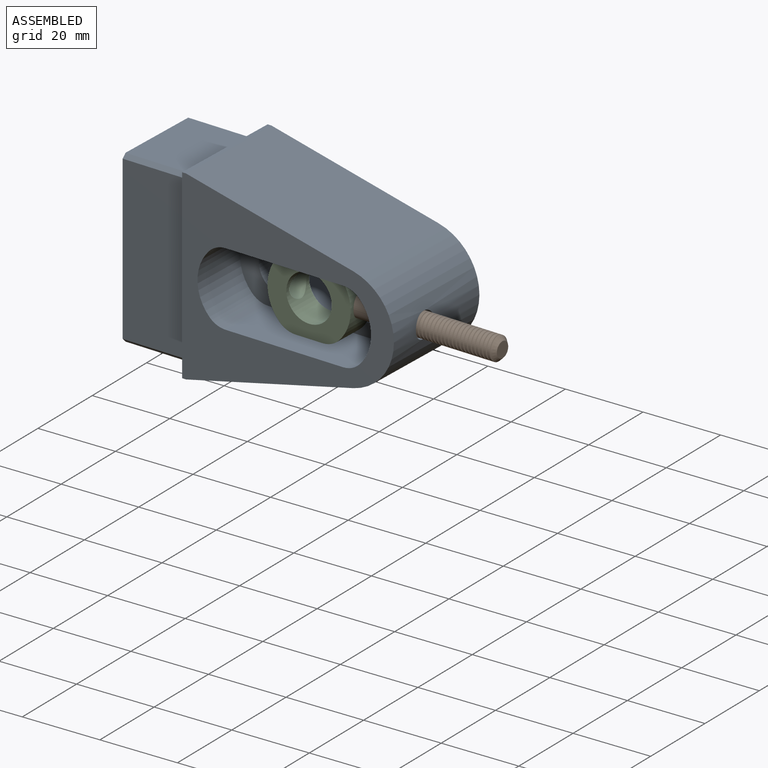
[diagram: assembled view]
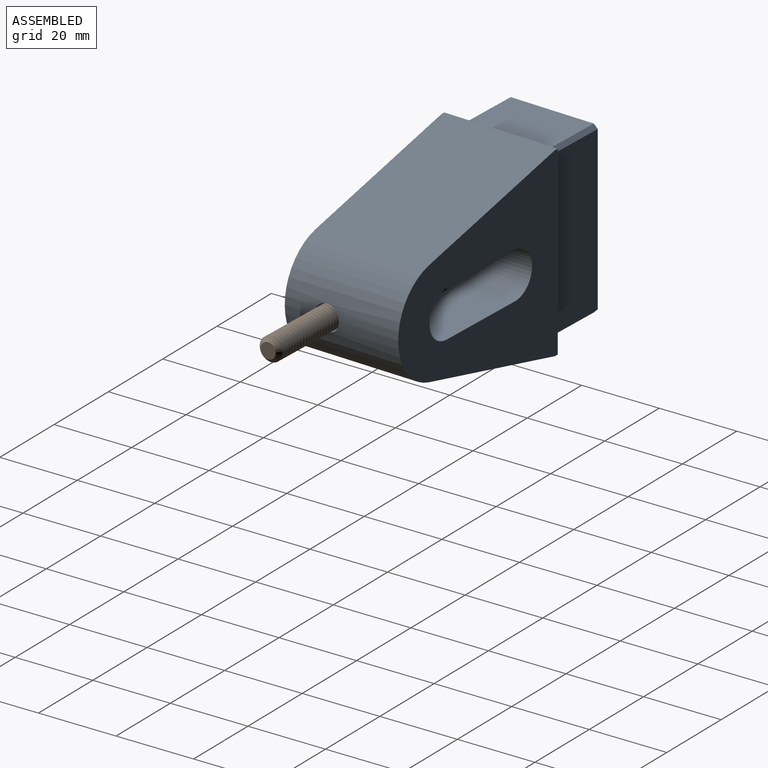
[diagram: assembled view, second angle]
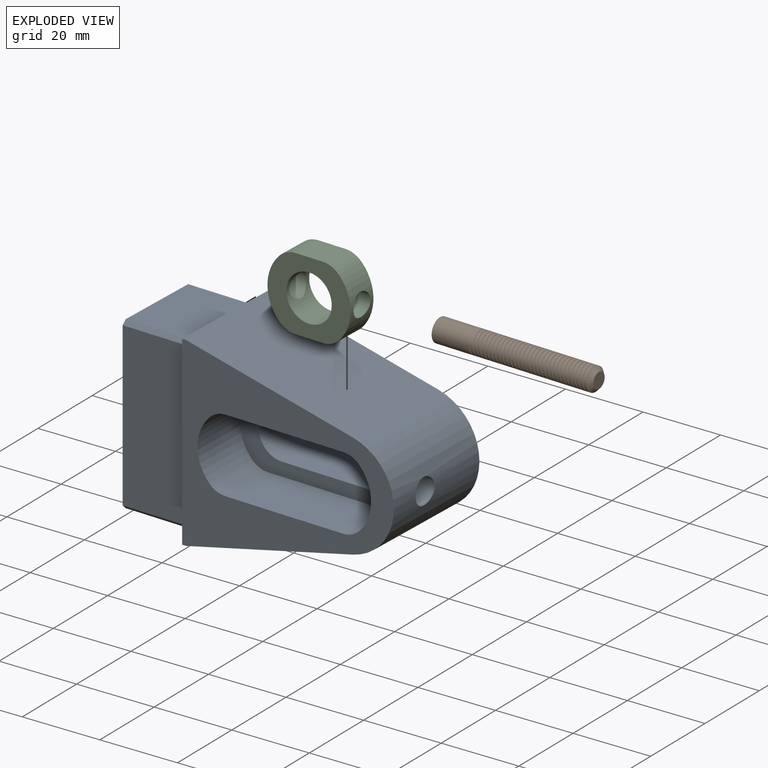
[diagram: exploded view]
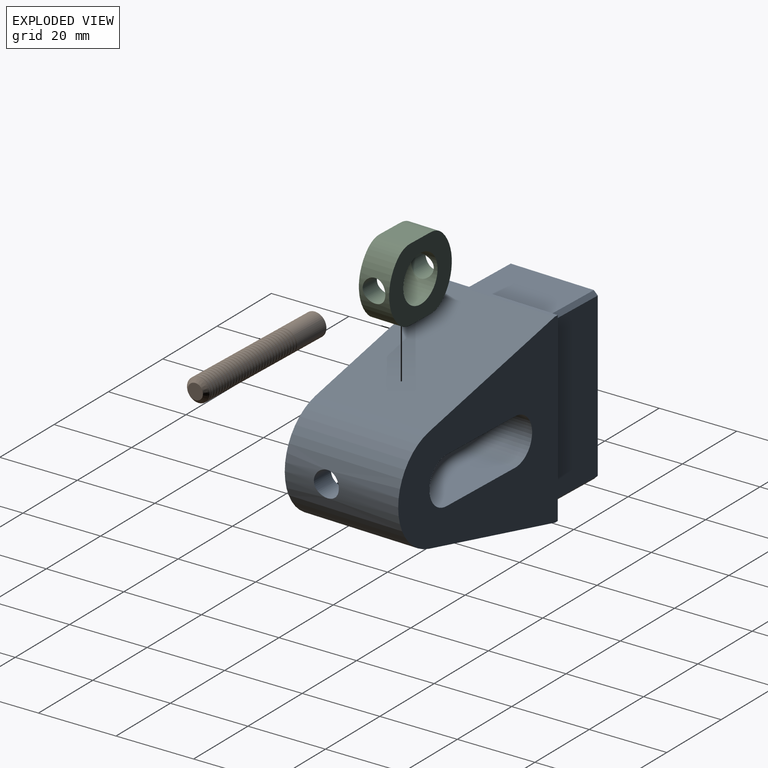
[diagram: exploded view, second angle]
ASSEMBLY  parts=3 mates=3
PART A: 31 faces, bbox 74x30x48 mm
  f0: plane 56x48mm, normal (0,-1,0), area 1120.4mm2, adj f5,f9,f10,f11,f12,f13,f22,f23
  f1: cylinder r=6mm len=15mm, axis (0,-1,0), area 282.7mm2, adj f2,f3,f14,f26
  f2: plane 24x15mm, normal (0,0,1), area 360mm2, adj f1,f4,f14,f26
  f3: plane 24x15mm, normal (0,0,-1), area 360mm2, adj f1,f4,f14,f26
  f4: cylinder r=6mm len=15mm, axis (0,-1,0), area 282.7mm2, adj f2,f3,f14,f26
  f5: cylinder r=14mm len=30mm, axis (0,1,0), area 1091.5mm2, adj f0,f10,f11,f14,f21
  f6: plane 22x18mm, normal (0,0,1), area 396mm2, adj f7,f13,f17,f20
  f7: plane 44x24mm, normal (-1,0,0), area 1054mm2, adj f6,f8,f15,f16,f17,f18,f19,f20
  f8: plane 22x18mm, normal (0,0,-1), area 396mm2, adj f7,f13,f18,f19
  f9: plane 30x1mm, normal (0,0,-1), area 30mm2, adj f0,f10,f13,f14
  f10: plane 44.2x30mm, normal (0.23,0,-0.97), area 1361.9mm2, adj f0,f5,f9,f14
  f11: plane 44.2x30mm, normal (0.23,0,0.97), area 1361.9mm2, adj f0,f5,f12,f14
  f12: plane 30x1mm, normal (0,0,1), area 30mm2, adj f0,f11,f13,f14
  f13: plane 48x30mm, normal (-1,0,0), area 386mm2, adj f0,f6,f8,f9,f12,f14,f15,f16
  f14: plane 56x48mm, normal (0,1,0), area 1529.2mm2, adj f1,f2,f3,f4,f5,f9,f10,f11
  f15: plane 42x18mm, normal (0,1,0), area 756mm2, adj f7,f13,f19,f20
  f16: plane 42x18mm, normal (0,-1,0), area 756mm2, adj f7,f13,f17,f18
  f17: plane 18x1mm, normal (0,-0.71,0.71), area 25.5mm2, adj f6,f7,f13,f16
  f18: plane 18x1mm, normal (0,-0.71,-0.71), area 25.5mm2, adj f7,f8,f13,f16
  f19: plane 18x1mm, normal (0,0.71,-0.71), area 25.5mm2, adj f7,f8,f13,f15
  f20: plane 18x1mm, normal (0,0.71,0.71), area 25.5mm2, adj f6,f7,f13,f15
  f21: cylinder r=3.3mm len=6.6mm, axis (1,0,0), area 126.5mm2, adj f5,f25
  f22: plane 31.05x15mm, normal (0,0,-1), area 465.8mm2, adj f0,f26,f27,f30
  f23: cylinder r=11mm len=15.4mm, axis (0,-1,0), area 255.9mm2, adj f0,f26,f27,f28
  f24: plane 31.05x15mm, normal (0,0,1), area 465.8mm2, adj f0,f26,f28,f29
  f25: cylinder r=11mm len=15.4mm, axis (0,-1,0), area 221.2mm2, adj f0,f21,f26,f29,f30
  f26: plane 45.91x19mm, normal (0,-1,0), area 408.8mm2, adj f1,f2,f3,f4,f22,f23,f24,f25
  f27: cylinder r=6mm len=15mm, axis (0,-1,0), area 71.6mm2, adj f0,f22,f23,f26
  f28: cylinder r=6mm len=15mm, axis (0,-1,0), area 71.6mm2, adj f0,f23,f24,f26
  f29: cylinder r=6mm len=15mm, axis (0,-1,0), area 71.6mm2, adj f0,f24,f25,f26
  f30: cylinder r=6mm len=15mm, axis (0,-1,0), area 71.6mm2, adj f0,f22,f25,f26
PART B: 37 faces, bbox 42x6x6.9 mm
  f0: plane 4x4mm, normal (1,0,0), area 12.6mm2, adj f36
  f1: cylinder r=3mm len=11.7mm, axis (-1,0,0), area 206.3mm2, adj f2,f32,f33,f34,f35
  f2: cylinder r=3mm len=6mm, axis (-1,0,0), area 13.2mm2, adj f1,f3,f34,f35
  f3: cylinder r=3mm len=6mm, axis (-1,0,0), area 13.2mm2, adj f2,f4,f34,f35
  f4: cylinder r=3mm len=6mm, axis (-1,0,0), area 13.2mm2, adj f3,f5,f34,f35
  f5: cylinder r=3mm len=6mm, axis (-1,0,0), area 13.2mm2, adj f4,f6,f34,f35
  f6: cylinder r=3mm len=6mm, axis (-1,0,0), area 13.2mm2, adj f5,f7,f34,f35
  f7: cylinder r=3mm len=6mm, axis (-1,0,0), area 13.2mm2, adj f6,f8,f34,f35
  f8: cylinder r=3mm len=6mm, axis (-1,0,0), area 13.2mm2, adj f7,f9,f34,f35
  f9: cylinder r=3mm len=6mm, axis (-1,0,0), area 13.2mm2, adj f8,f10,f34,f35
  f10: cylinder r=3mm len=6mm, axis (-1,0,0), area 13.2mm2, adj f9,f11,f34,f35
  f11: cylinder r=3mm len=6mm, axis (-1,0,0), area 13.2mm2, adj f10,f12,f34,f35
  f12: cylinder r=3mm len=6mm, axis (-1,0,0), area 13.2mm2, adj f11,f13,f34,f35
  f13: cylinder r=3mm len=6mm, axis (-1,0,0), area 13.2mm2, adj f12,f14,f34,f35
  f14: cylinder r=3mm len=6mm, axis (-1,0,0), area 13.2mm2, adj f13,f15,f34,f35
  f15: cylinder r=3mm len=6mm, axis (-1,0,0), area 13.2mm2, adj f14,f16,f34,f35
  f16: cylinder r=3mm len=6mm, axis (-1,0,0), area 13.2mm2, adj f15,f17,f34,f35
  f17: cylinder r=3mm len=6mm, axis (-1,0,0), area 13.2mm2, adj f16,f18,f34,f35
  f18: cylinder r=3mm len=6mm, axis (-1,0,0), area 13.2mm2, adj f17,f19,f34,f35
  f19: cylinder r=3mm len=6mm, axis (-1,0,0), area 13.2mm2, adj f18,f20,f34,f35
  f20: cylinder r=3mm len=6mm, axis (-1,0,0), area 13.2mm2, adj f19,f21,f34,f35
  f21: cylinder r=3mm len=6mm, axis (-1,0,0), area 13.2mm2, adj f20,f22,f34,f35
  f22: cylinder r=3mm len=6mm, axis (-1,0,0), area 13.2mm2, adj f21,f23,f34,f35
  f23: cylinder r=3mm len=6mm, axis (-1,0,0), area 13.2mm2, adj f22,f24,f34,f35
  f24: cylinder r=3mm len=6mm, axis (-1,0,0), area 13.2mm2, adj f23,f25,f34,f35
  f25: cylinder r=3mm len=6mm, axis (-1,0,0), area 13.2mm2, adj f24,f26,f34,f35
  f26: cylinder r=3mm len=6mm, axis (-1,0,0), area 13.2mm2, adj f25,f27,f34,f35
  f27: cylinder r=3mm len=6mm, axis (-1,0,0), area 13.2mm2, adj f26,f28,f34,f35
  f28: cylinder r=3mm len=6mm, axis (-1,0,0), area 13.2mm2, adj f27,f29,f34,f35
  f29: cylinder r=3mm len=6mm, axis (-1,0,0), area 13.2mm2, adj f28,f30,f34,f35
  f30: cylinder r=3mm len=6mm, axis (-1,0,0), area 13.2mm2, adj f29,f31,f34,f35
  f31: cylinder r=3mm len=6mm, axis (-1,0,0), area 8.6mm2, adj f30,f34,f35,f36
  f32: plane 6x6mm, normal (-1,0,0), area 28.3mm2, adj f1
  f33: plane 0.3x0.26mm, normal (0,0,-1), area 0mm2, adj f1,f34,f35
  f34: bspline ~31.48x6.93mm, area 169.1mm2, adj f1,f2,f3,f4,f5,f6,f7,f8
  f35: bspline ~31.48x6.93mm, area 168.2mm2, adj f1,f2,f3,f4,f5,f6,f7,f8
  f36: cone r=2mm half-angle=45deg, axis (-1,0,0), area 21.2mm2, adj f0,f31,f34,f35
PART C: 13 faces, bbox 22x8x19 mm
  f0: cylinder r=11mm len=15.4mm, axis (0,1,0), area 107.9mm2, adj f5,f6,f8,f9,f10
  f1: cylinder r=6mm len=12mm, axis (0,1,0), area 243.2mm2, adj f5,f6,f7,f8
  f2: cylinder r=11mm len=15.4mm, axis (0,1,0), area 107.9mm2, adj f5,f6,f7,f11,f12
  f3: plane 8x7.14mm, normal (0,0,1), area 57.1mm2, adj f5,f6,f9,f12
  f4: plane 8x7.14mm, normal (0,0,-1), area 57.1mm2, adj f5,f6,f10,f11
  f5: plane 22x19mm, normal (0,-1,0), area 242.5mm2, adj f0,f1,f2,f3,f4,f9,f10,f11
  f6: plane 22x19mm, normal (0,1,0), area 242.5mm2, adj f0,f1,f2,f3,f4,f9,f10,f11
  f7: cylinder r=3mm len=6mm, axis (-1,0,0), area 97.8mm2, adj f1,f2
  f8: cylinder r=3mm len=6mm, axis (-1,0,0), area 97.8mm2, adj f0,f1
  f9: cylinder r=6mm len=8mm, axis (0,1,0), area 38.2mm2, adj f0,f3,f5,f6
  f10: cylinder r=6mm len=8mm, axis (0,1,0), area 38.2mm2, adj f0,f4,f5,f6
  f11: cylinder r=6mm len=8mm, axis (0,1,0), area 38.2mm2, adj f2,f4,f5,f6
  f12: cylinder r=6mm len=8mm, axis (0,1,0), area 38.2mm2, adj f2,f3,f5,f6
PLACE A rot(axis=(0,0,-1),2deg) t=(21.91,-58.15,-0.34)mm
PLACE B rot(axis=(0,0,-1),2deg) t=(76.16,-64.04,-0.34)mm
PLACE C rot(axis=(0,0,-1),2deg) t=(49.03,-63.1,-0.34)mm
MATE planar C.f4 <-> A.f24  axis (0,0,-1) through (49.03,-63.1,-9.84)mm
MATE revolute B.f1 <-> C.f7  axis (-1,0.03,0) through (55.18,-63.31,-0.34)mm
MATE planar C.f1 <-> A.f26  axis (0.03,1,0) through (49.17,-59.1,-0.34)mm
